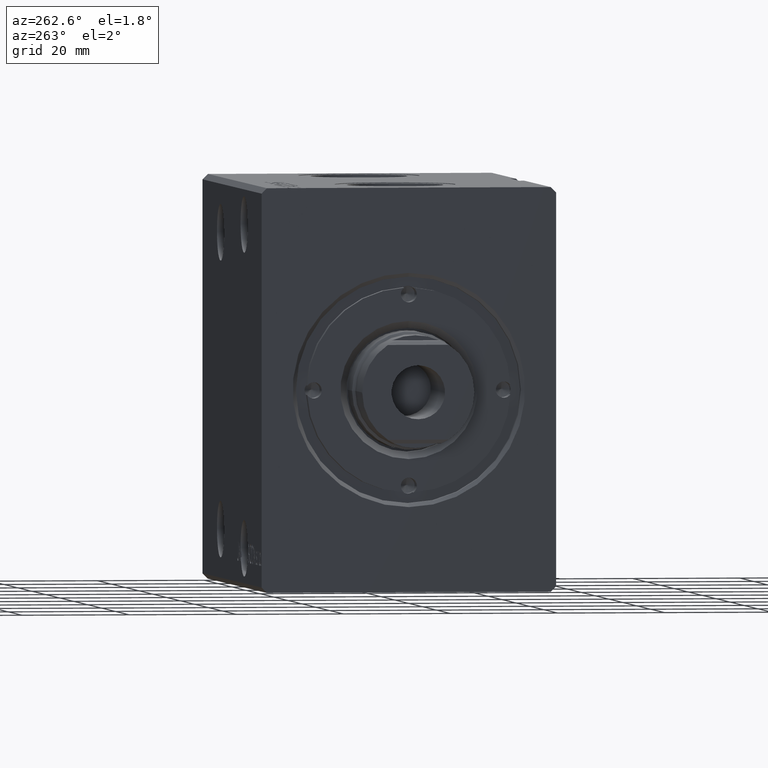
[diagram: clean part render]
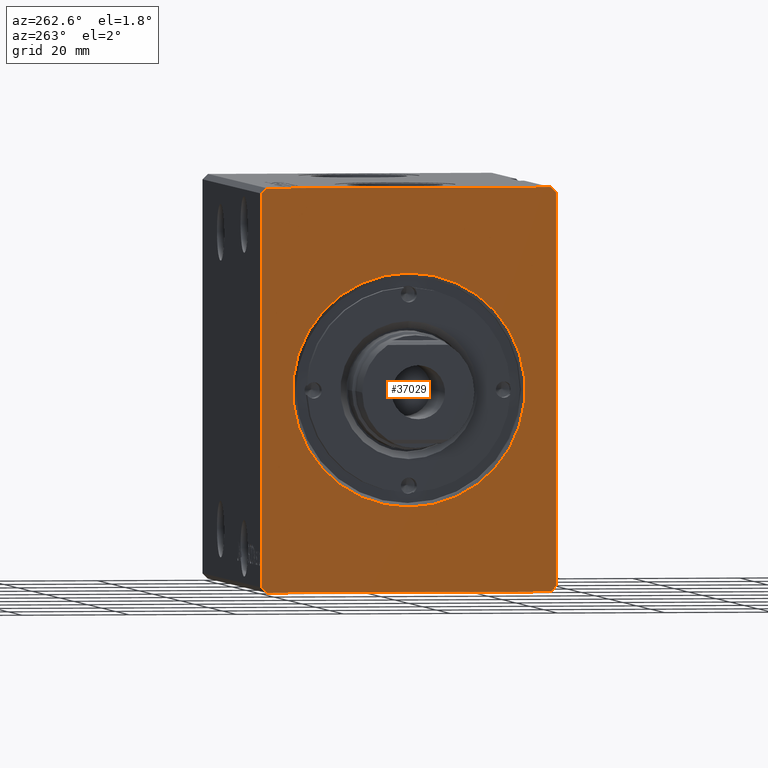
[diagram: same view with one face highlighted and labeled with its STEP entity id]
A machine part, auxiliary view. The second image highlights one B-rep face of the part: STEP entity #37029.
In plain terms, the highlighted planar face has unit normal (1, 0, 0).
Its self-contained STEP definition (entity closure, byte-faithful):
#106 = VECTOR ( 'NONE', #927, 1000.000000000000114 ) ;
#154 = LINE ( 'NONE', #12806, #31852 ) ;
#549 = ORIENTED_EDGE ( 'NONE', *, *, #2307, .F. ) ;
#927 = DIRECTION ( 'NONE',  ( 0.000000000000000000, -0.7071067811865474617, 0.7071067811865474617 ) ) ;
#1070 = ORIENTED_EDGE ( 'NONE', *, *, #14374, .T. ) ;
#1396 = VECTOR ( 'NONE', #19390, 1000.000000000000114 ) ;
#2307 = EDGE_CURVE ( 'NONE', #22207, #24582, #5831, .T. ) ;
#3504 = EDGE_CURVE ( 'NONE', #27323, #22207, #5134, .T. ) ;
#3528 = CARTESIAN_POINT ( 'NONE',  ( 0.000000000000000000, 27.50000000000000711, -36.49999999999999289 ) ) ;
#4338 = VECTOR ( 'NONE', #8440, 1000.000000000000114 ) ;
#4593 = EDGE_LOOP ( 'NONE', ( #20180, #1070 ) ) ;
#4978 = CARTESIAN_POINT ( 'NONE',  ( 0.000000000000000000, 26.50000000000000711, -37.49999999999999289 ) ) ;
#5134 = LINE ( 'NONE', #26643, #32771 ) ;
#5831 = LINE ( 'NONE', #37119, #106 ) ;
#6383 = EDGE_CURVE ( 'NONE', #11656, #29873, #21713, .T. ) ;
#6986 = LINE ( 'NONE', #29095, #11040 ) ;
#6997 = CARTESIAN_POINT ( 'NONE',  ( 0.000000000000000000, -26.50000000000000355, -37.49999999999999289 ) ) ;
#7351 = VERTEX_POINT ( 'NONE', #23231 ) ;
#7590 = LINE ( 'NONE', #38080, #33146 ) ;
#7594 = CARTESIAN_POINT ( 'NONE',  ( 0.000000000000000000, 0.000000000000000000, 0.000000000000000000 ) ) ;
#8440 = DIRECTION ( 'NONE',  ( 0.000000000000000000, -0.7071067811865474617, -0.7071067811865474617 ) ) ;
#9115 = CARTESIAN_POINT ( 'NONE',  ( 0.000000000000000000, 0.000000000000000000, 0.000000000000000000 ) ) ;
#11040 = VECTOR ( 'NONE', #35214, 1000.000000000000000 ) ;
#11656 = VERTEX_POINT ( 'NONE', #32293 ) ;
#11772 = DIRECTION ( 'NONE',  ( 0.000000000000000000, 0.000000000000000000, -1.000000000000000000 ) ) ;
#11889 = VERTEX_POINT ( 'NONE', #37039 ) ;
#12806 = CARTESIAN_POINT ( 'NONE',  ( 0.000000000000000000, -27.50000000000000355, -36.49999999999998579 ) ) ;
#12846 = DIRECTION ( 'NONE',  ( 1.000000000000000000, 0.000000000000000000, 0.000000000000000000 ) ) ;
#14084 = CARTESIAN_POINT ( 'NONE',  ( 0.000000000000000000, 27.50000000000000355, 36.50000000000000711 ) ) ;
#14199 = VERTEX_POINT ( 'NONE', #16440 ) ;
#14371 = ORIENTED_EDGE ( 'NONE', *, *, #39950, .F. ) ;
#14374 = EDGE_CURVE ( 'NONE', #29873, #11656, #14553, .T. ) ;
#14553 = CIRCLE ( 'NONE', #34161, 21.69999999999999574 ) ;
#14838 = FACE_BOUND ( 'NONE', #4593, .T. ) ;
#15239 = EDGE_LOOP ( 'NONE', ( #549, #21094, #14371, #32241, #23292, #15672, #21283, #31331 ) ) ;
#15672 = ORIENTED_EDGE ( 'NONE', *, *, #27875, .F. ) ;
#16440 = CARTESIAN_POINT ( 'NONE',  ( 0.000000000000000000, -27.50000000000000711, 36.50000000000000711 ) ) ;
#16460 = CARTESIAN_POINT ( 'NONE',  ( 0.000000000000000000, 26.50000000000000355, 37.50000000000000711 ) ) ;
#17414 = CARTESIAN_POINT ( 'NONE',  ( 0.000000000000000000, 2.657483554149755949E-15, -21.69999999999999574 ) ) ;
#17635 = LINE ( 'NONE', #4978, #1396 ) ;
#19390 = DIRECTION ( 'NONE',  ( 0.000000000000000000, 0.7071067811865474617, 0.7071067811865474617 ) ) ;
#19894 = DIRECTION ( 'NONE',  ( 0.000000000000000000, -4.752667057470704875E-17, 1.000000000000000000 ) ) ;
#20180 = ORIENTED_EDGE ( 'NONE', *, *, #6383, .T. ) ;
#21094 = ORIENTED_EDGE ( 'NONE', *, *, #3504, .F. ) ;
#21283 = ORIENTED_EDGE ( 'NONE', *, *, #23864, .F. ) ;
#21445 = VECTOR ( 'NONE', #36673, 1000.000000000000000 ) ;
#21598 = DIRECTION ( 'NONE',  ( 1.000000000000000000, 0.000000000000000000, 0.000000000000000000 ) ) ;
#21650 = DIRECTION ( 'NONE',  ( 0.000000000000000000, 0.000000000000000000, -1.000000000000000000 ) ) ;
#21713 = CIRCLE ( 'NONE', #26951, 21.69999999999999574 ) ;
#22207 = VERTEX_POINT ( 'NONE', #14084 ) ;
#23231 = CARTESIAN_POINT ( 'NONE',  ( 0.000000000000000000, -26.50000000000000711, 37.50000000000000711 ) ) ;
#23292 = ORIENTED_EDGE ( 'NONE', *, *, #27763, .F. ) ;
#23356 = DIRECTION ( 'NONE',  ( 0.000000000000000000, -1.000000000000000000, 0.000000000000000000 ) ) ;
#23502 = AXIS2_PLACEMENT_3D ( 'NONE', #9115, #21598, #11772 ) ;
#23864 = EDGE_CURVE ( 'NONE', #7351, #14199, #39141, .T. ) ;
#23869 = CARTESIAN_POINT ( 'NONE',  ( 0.000000000000000000, -27.50000000000000355, -36.49999999999998579 ) ) ;
#24582 = VERTEX_POINT ( 'NONE', #16460 ) ;
#24625 = CARTESIAN_POINT ( 'NONE',  ( 0.000000000000000000, -27.50000000000000711, 36.50000000000000711 ) ) ;
#24671 = PLANE ( 'NONE',  #23502 ) ;
#25629 = DIRECTION ( 'NONE',  ( 0.000000000000000000, 0.000000000000000000, -1.000000000000000000 ) ) ;
#26643 = CARTESIAN_POINT ( 'NONE',  ( 0.000000000000000000, 27.50000000000000711, -36.49999999999999289 ) ) ;
#26951 = AXIS2_PLACEMENT_3D ( 'NONE', #28420, #12846, #21650 ) ;
#27323 = VERTEX_POINT ( 'NONE', #3528 ) ;
#27372 = EDGE_CURVE ( 'NONE', #24582, #7351, #7590, .T. ) ;
#27763 = EDGE_CURVE ( 'NONE', #36862, #40210, #154, .T. ) ;
#27875 = EDGE_CURVE ( 'NONE', #14199, #36862, #33203, .T. ) ;
#28420 = CARTESIAN_POINT ( 'NONE',  ( 0.000000000000000000, 0.000000000000000000, 0.000000000000000000 ) ) ;
#29095 = CARTESIAN_POINT ( 'NONE',  ( 0.000000000000000000, -26.50000000000000355, -37.49999999999999289 ) ) ;
#29873 = VERTEX_POINT ( 'NONE', #17414 ) ;
#31331 = ORIENTED_EDGE ( 'NONE', *, *, #27372, .F. ) ;
#31814 = DIRECTION ( 'NONE',  ( 0.000000000000000000, 0.7071067811865451302, -0.7071067811865500152 ) ) ;
#31852 = VECTOR ( 'NONE', #31814, 1000.000000000000114 ) ;
#32144 = DIRECTION ( 'NONE',  ( 1.000000000000000000, 0.000000000000000000, 0.000000000000000000 ) ) ;
#32241 = ORIENTED_EDGE ( 'NONE', *, *, #35034, .F. ) ;
#32293 = CARTESIAN_POINT ( 'NONE',  ( 0.000000000000000000, 0.000000000000000000, 21.69999999999999574 ) ) ;
#32771 = VECTOR ( 'NONE', #19894, 1000.000000000000000 ) ;
#33146 = VECTOR ( 'NONE', #23356, 1000.000000000000000 ) ;
#33203 = LINE ( 'NONE', #24625, #21445 ) ;
#33383 = CARTESIAN_POINT ( 'NONE',  ( 0.000000000000000000, -26.50000000000000711, 37.50000000000000711 ) ) ;
#34161 = AXIS2_PLACEMENT_3D ( 'NONE', #7594, #32144, #25629 ) ;
#35034 = EDGE_CURVE ( 'NONE', #40210, #11889, #6986, .T. ) ;
#35214 = DIRECTION ( 'NONE',  ( 0.000000000000000000, 1.000000000000000000, 0.000000000000000000 ) ) ;
#36673 = DIRECTION ( 'NONE',  ( 0.000000000000000000, 4.752667057470705491E-17, -1.000000000000000000 ) ) ;
#36862 = VERTEX_POINT ( 'NONE', #23869 ) ;
#37029 = ADVANCED_FACE ( 'NONE', ( #14838, #37129 ), #24671, .F. ) ;
#37039 = CARTESIAN_POINT ( 'NONE',  ( 0.000000000000000000, 26.50000000000000711, -37.49999999999999289 ) ) ;
#37119 = CARTESIAN_POINT ( 'NONE',  ( 0.000000000000000000, 27.50000000000000355, 36.50000000000000711 ) ) ;
#37129 = FACE_OUTER_BOUND ( 'NONE', #15239, .T. ) ;
#38080 = CARTESIAN_POINT ( 'NONE',  ( 0.000000000000000000, 26.50000000000000355, 37.50000000000000711 ) ) ;
#39141 = LINE ( 'NONE', #33383, #4338 ) ;
#39950 = EDGE_CURVE ( 'NONE', #11889, #27323, #17635, .T. ) ;
#40210 = VERTEX_POINT ( 'NONE', #6997 ) ;